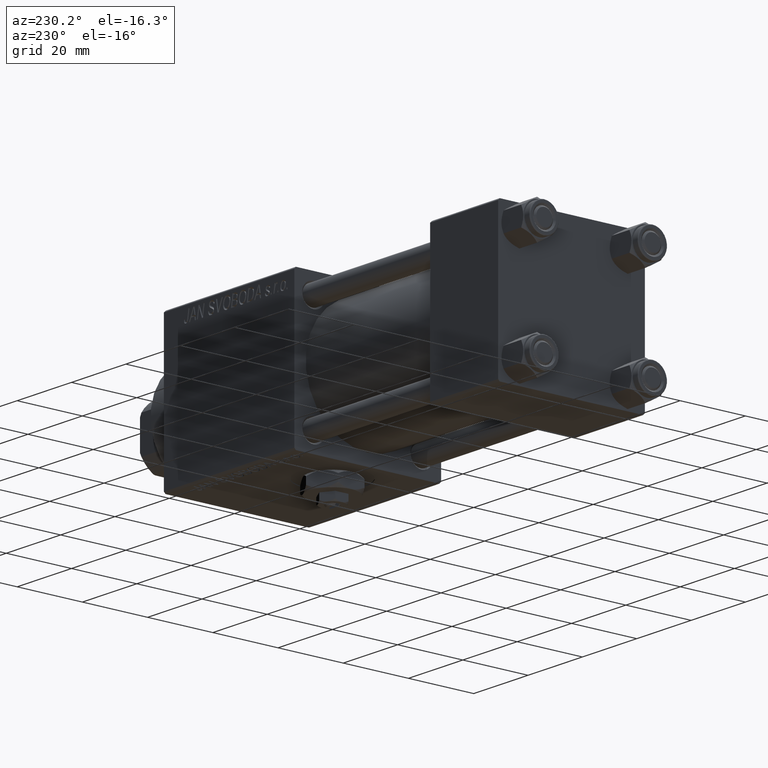
[diagram: clean part render]
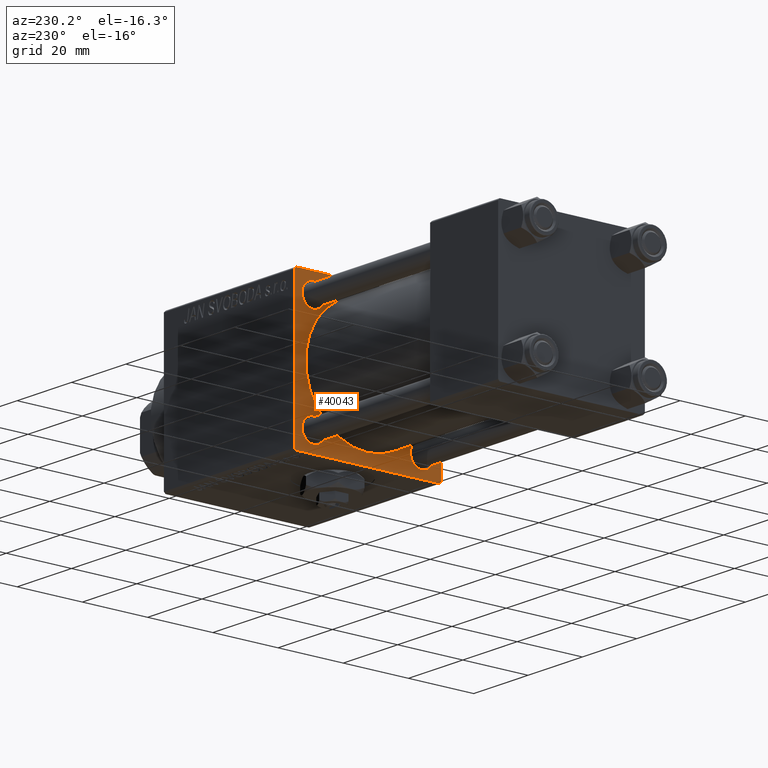
[diagram: same view with one face highlighted and labeled with its STEP entity id]
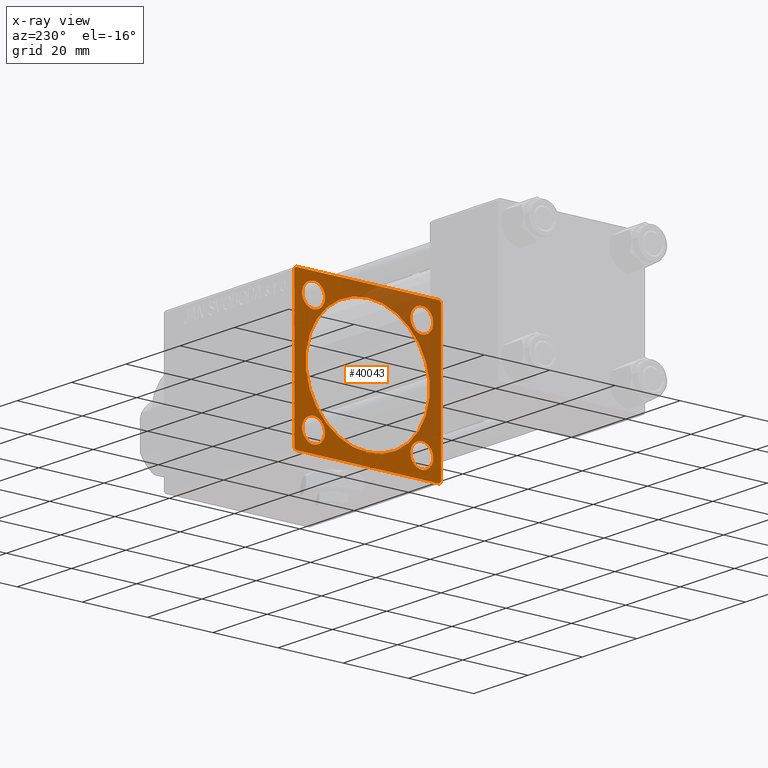
[diagram: x-ray of the same camera — body ghosted, the highlighted face saturated]
A machine part, auxiliary view. The second image highlights one B-rep face of the part: STEP entity #40043.
The next image is the same camera in x-ray: the body ghosted, the highlighted face saturated — about 37% of this face is hidden behind the body in this view.
In plain terms, the highlighted planar face has unit normal (-1, 0, 0).
Its self-contained STEP definition (entity closure, byte-faithful):
#465 = CIRCLE ( 'NONE', #18048, 3.500000000000013323 ) ;
#1208 = VECTOR ( 'NONE', #1463, 999.9999999999998863 ) ;
#1354 = VERTEX_POINT ( 'NONE', #8904 ) ;
#1416 = EDGE_LOOP ( 'NONE', ( #18788, #15748 ) ) ;
#1463 = DIRECTION ( 'NONE',  ( 0.000000000000000000, -0.7071067811865425767, 0.7071067811865525687 ) ) ;
#1818 = EDGE_LOOP ( 'NONE', ( #40260, #8566 ) ) ;
#2043 = AXIS2_PLACEMENT_3D ( 'NONE', #47583, #28475, #15345 ) ;
#2075 = VERTEX_POINT ( 'NONE', #25822 ) ;
#2494 = EDGE_CURVE ( 'NONE', #43541, #48526, #46695, .T. ) ;
#2769 = DIRECTION ( 'NONE',  ( 0.000000000000000000, 0.000000000000000000, -1.000000000000000000 ) ) ;
#3001 = EDGE_CURVE ( 'NONE', #21771, #5121, #40985, .T. ) ;
#3101 = LINE ( 'NONE', #10973, #7654 ) ;
#3472 = VERTEX_POINT ( 'NONE', #20375 ) ;
#3881 = CARTESIAN_POINT ( 'NONE',  ( 75.00000000000001421, 16.59999999999999787, 16.60000000000000497 ) ) ;
#4811 = CIRCLE ( 'NONE', #34107, 19.00000000000000000 ) ;
#4905 = EDGE_CURVE ( 'NONE', #2075, #41671, #24202, .T. ) ;
#5121 = VERTEX_POINT ( 'NONE', #5480 ) ;
#5400 = LINE ( 'NONE', #9593, #1208 ) ;
#5480 = CARTESIAN_POINT ( 'NONE',  ( 75.00000000000001421, -21.99999999999998224, -22.50000000000000000 ) ) ;
#5544 = ORIENTED_EDGE ( 'NONE', *, *, #8315, .T. ) ;
#5810 = CARTESIAN_POINT ( 'NONE',  ( 75.00000000000001421, 16.59999999999999787, 16.60000000000000497 ) ) ;
#6050 = VERTEX_POINT ( 'NONE', #35677 ) ;
#6139 = VECTOR ( 'NONE', #14066, 1000.000000000000000 ) ;
#6452 = CARTESIAN_POINT ( 'NONE',  ( 75.00000000000001421, 22.50000000000000355, 22.50000000000000355 ) ) ;
#6991 = EDGE_CURVE ( 'NONE', #38206, #37754, #3101, .T. ) ;
#7266 = DIRECTION ( 'NONE',  ( 0.000000000000000000, 0.000000000000000000, -1.000000000000000000 ) ) ;
#7268 = VERTEX_POINT ( 'NONE', #10396 ) ;
#7654 = VECTOR ( 'NONE', #23836, 1000.000000000000000 ) ;
#7696 = FACE_BOUND ( 'NONE', #50172, .T. ) ;
#7879 = EDGE_CURVE ( 'NONE', #41671, #2075, #51214, .T. ) ;
#7964 = CARTESIAN_POINT ( 'NONE',  ( 75.00000000000001421, 0.000000000000000000, 0.000000000000000000 ) ) ;
#8041 = EDGE_LOOP ( 'NONE', ( #19420, #41064, #17453, #31757, #20898, #37013, #48040, #5544 ) ) ;
#8315 = EDGE_CURVE ( 'NONE', #42344, #21771, #12242, .T. ) ;
#8566 = ORIENTED_EDGE ( 'NONE', *, *, #22866, .T. ) ;
#8904 = CARTESIAN_POINT ( 'NONE',  ( 75.00000000000001421, -22.49999999999999645, -21.99999999999997868 ) ) ;
#9536 = CARTESIAN_POINT ( 'NONE',  ( 75.00000000000001421, 16.59999999999999787, -16.60000000000000497 ) ) ;
#9593 = CARTESIAN_POINT ( 'NONE',  ( 75.00000000000001421, -22.25000000000015277, -22.24999999999984013 ) ) ;
#10396 = CARTESIAN_POINT ( 'NONE',  ( 75.00000000000001421, 16.59999999999999787, 20.10000000000001208 ) ) ;
#10691 = CARTESIAN_POINT ( 'NONE',  ( 75.00000000000001421, 22.50000000000000355, 22.50000000000000355 ) ) ;
#10973 = CARTESIAN_POINT ( 'NONE',  ( 75.00000000000001421, -22.24999999999969447, 22.25000000000030909 ) ) ;
#11273 = AXIS2_PLACEMENT_3D ( 'NONE', #5810, #45663, #50369 ) ;
#11653 = VECTOR ( 'NONE', #23161, 1000.000000000000000 ) ;
#12016 = DIRECTION ( 'NONE',  ( 0.000000000000000000, 0.000000000000000000, 1.000000000000000000 ) ) ;
#12025 = EDGE_CURVE ( 'NONE', #41240, #37754, #43777, .T. ) ;
#12129 = AXIS2_PLACEMENT_3D ( 'NONE', #3881, #27500, #12016 ) ;
#12242 = LINE ( 'NONE', #37110, #29485 ) ;
#12258 = AXIS2_PLACEMENT_3D ( 'NONE', #21586, #13697, #17893 ) ;
#12764 = ORIENTED_EDGE ( 'NONE', *, *, #34625, .T. ) ;
#13517 = EDGE_CURVE ( 'NONE', #38206, #1354, #19133, .T. ) ;
#13697 = DIRECTION ( 'NONE',  ( 1.000000000000000000, 0.000000000000000000, 0.000000000000000000 ) ) ;
#13781 = CIRCLE ( 'NONE', #11273, 3.500000000000010214 ) ;
#14066 = DIRECTION ( 'NONE',  ( 0.000000000000000000, -1.000000000000000000, -2.312964634635742957E-16 ) ) ;
#14697 = CARTESIAN_POINT ( 'NONE',  ( 75.00000000000001421, -16.59999999999999076, -13.09999999999999787 ) ) ;
#15045 = FACE_BOUND ( 'NONE', #1416, .T. ) ;
#15164 = DIRECTION ( 'NONE',  ( 0.000000000000000000, 0.000000000000000000, 1.000000000000000000 ) ) ;
#15193 = DIRECTION ( 'NONE',  ( 0.000000000000000000, 0.000000000000000000, -1.000000000000000000 ) ) ;
#15345 = DIRECTION ( 'NONE',  ( 0.000000000000000000, 0.000000000000000000, 1.000000000000000000 ) ) ;
#15470 = CARTESIAN_POINT ( 'NONE',  ( 75.00000000000001421, 16.59999999999999787, -20.10000000000001208 ) ) ;
#15566 = FACE_BOUND ( 'NONE', #34694, .T. ) ;
#15748 = ORIENTED_EDGE ( 'NONE', *, *, #4905, .T. ) ;
#16235 = CARTESIAN_POINT ( 'NONE',  ( 75.00000000000001421, -16.59999999999999076, 16.60000000000000853 ) ) ;
#17453 = ORIENTED_EDGE ( 'NONE', *, *, #13517, .F. ) ;
#17670 = DIRECTION ( 'NONE',  ( 1.000000000000000000, -0.000000000000000000, 0.000000000000000000 ) ) ;
#17893 = DIRECTION ( 'NONE',  ( 0.000000000000000000, 0.000000000000000000, -1.000000000000000000 ) ) ;
#18048 = AXIS2_PLACEMENT_3D ( 'NONE', #16235, #39301, #27522 ) ;
#18362 = EDGE_CURVE ( 'NONE', #6050, #39430, #29701, .T. ) ;
#18561 = LINE ( 'NONE', #10691, #28384 ) ;
#18788 = ORIENTED_EDGE ( 'NONE', *, *, #7879, .T. ) ;
#18915 = VERTEX_POINT ( 'NONE', #45145 ) ;
#18979 = DIRECTION ( 'NONE',  ( -0.000000000000000000, 0.000000000000000000, 1.000000000000000000 ) ) ;
#19133 = LINE ( 'NONE', #51109, #36249 ) ;
#19234 = LINE ( 'NONE', #51462, #11653 ) ;
#19420 = ORIENTED_EDGE ( 'NONE', *, *, #3001, .T. ) ;
#20041 = CARTESIAN_POINT ( 'NONE',  ( 75.00000000000001421, -2.602085213965210642E-15, 0.000000000000000000 ) ) ;
#20375 = CARTESIAN_POINT ( 'NONE',  ( 75.00000000000001421, -2.602085213965210642E-15, 19.00000000000000000 ) ) ;
#20561 = DIRECTION ( 'NONE',  ( 0.000000000000000000, -1.000000000000000000, -7.709882115452476934E-17 ) ) ;
#20805 = DIRECTION ( 'NONE',  ( 0.000000000000000000, 0.000000000000000000, 1.000000000000000000 ) ) ;
#20898 = ORIENTED_EDGE ( 'NONE', *, *, #12025, .F. ) ;
#21586 = CARTESIAN_POINT ( 'NONE',  ( 75.00000000000001421, -2.602085213965210642E-15, 0.000000000000000000 ) ) ;
#21771 = VERTEX_POINT ( 'NONE', #22919 ) ;
#22866 = EDGE_CURVE ( 'NONE', #18915, #3472, #34837, .T. ) ;
#22919 = CARTESIAN_POINT ( 'NONE',  ( 75.00000000000001421, 22.00000000000000355, -22.49999999999999645 ) ) ;
#23161 = DIRECTION ( 'NONE',  ( 0.000000000000000000, 0.7071067811865573427, -0.7071067811865378028 ) ) ;
#23711 = FACE_OUTER_BOUND ( 'NONE', #8041, .T. ) ;
#23836 = DIRECTION ( 'NONE',  ( -0.000000000000000000, 0.7071067811865573427, 0.7071067811865378028 ) ) ;
#24202 = CIRCLE ( 'NONE', #43436, 3.500000000000010214 ) ;
#24370 = DIRECTION ( 'NONE',  ( 0.000000000000000000, 0.000000000000000000, 1.000000000000000000 ) ) ;
#25822 = CARTESIAN_POINT ( 'NONE',  ( 75.00000000000001421, -16.59999999999999076, -20.10000000000001563 ) ) ;
#27251 = DIRECTION ( 'NONE',  ( 1.000000000000000000, -0.000000000000000000, 0.000000000000000000 ) ) ;
#27500 = DIRECTION ( 'NONE',  ( 1.000000000000000000, -0.000000000000000000, 0.000000000000000000 ) ) ;
#27522 = DIRECTION ( 'NONE',  ( 0.000000000000000000, 0.000000000000000000, 1.000000000000000000 ) ) ;
#28384 = VECTOR ( 'NONE', #7266, 1000.000000000000000 ) ;
#28475 = DIRECTION ( 'NONE',  ( 1.000000000000000000, -0.000000000000000000, 0.000000000000000000 ) ) ;
#28648 = AXIS2_PLACEMENT_3D ( 'NONE', #31173, #27251, #24370 ) ;
#29042 = AXIS2_PLACEMENT_3D ( 'NONE', #7964, #47548, #18979 ) ;
#29485 = VECTOR ( 'NONE', #36601, 1000.000000000000000 ) ;
#29701 = CIRCLE ( 'NONE', #2043, 3.500000000000013323 ) ;
#31079 = CARTESIAN_POINT ( 'NONE',  ( 75.00000000000001421, 21.99999999999996092, 22.50000000000000355 ) ) ;
#31173 = CARTESIAN_POINT ( 'NONE',  ( 75.00000000000001421, -16.59999999999999076, -16.60000000000000853 ) ) ;
#31757 = ORIENTED_EDGE ( 'NONE', *, *, #6991, .T. ) ;
#32113 = EDGE_CURVE ( 'NONE', #41240, #45569, #19234, .T. ) ;
#32492 = ORIENTED_EDGE ( 'NONE', *, *, #35133, .T. ) ;
#34107 = AXIS2_PLACEMENT_3D ( 'NONE', #20041, #36006, #2769 ) ;
#34383 = EDGE_CURVE ( 'NONE', #5121, #1354, #5400, .T. ) ;
#34625 = EDGE_CURVE ( 'NONE', #48526, #43541, #49755, .T. ) ;
#34694 = EDGE_LOOP ( 'NONE', ( #32492, #46380 ) ) ;
#34837 = CIRCLE ( 'NONE', #12258, 19.00000000000000000 ) ;
#35133 = EDGE_CURVE ( 'NONE', #7268, #39927, #13781, .T. ) ;
#35207 = ORIENTED_EDGE ( 'NONE', *, *, #18362, .T. ) ;
#35222 = PLANE ( 'NONE',  #29042 ) ;
#35498 = EDGE_CURVE ( 'NONE', #39927, #7268, #49788, .T. ) ;
#35677 = CARTESIAN_POINT ( 'NONE',  ( 75.00000000000001421, -16.59999999999999076, 13.09999999999999432 ) ) ;
#35851 = AXIS2_PLACEMENT_3D ( 'NONE', #51333, #38511, #15164 ) ;
#36006 = DIRECTION ( 'NONE',  ( 1.000000000000000000, 0.000000000000000000, 0.000000000000000000 ) ) ;
#36018 = FACE_BOUND ( 'NONE', #1818, .T. ) ;
#36249 = VECTOR ( 'NONE', #15193, 1000.000000000000000 ) ;
#36401 = EDGE_LOOP ( 'NONE', ( #50683, #35207 ) ) ;
#36601 = DIRECTION ( 'NONE',  ( -0.000000000000000000, -0.7071067811865573427, -0.7071067811865378028 ) ) ;
#37013 = ORIENTED_EDGE ( 'NONE', *, *, #32113, .T. ) ;
#37110 = CARTESIAN_POINT ( 'NONE',  ( 75.00000000000001421, 22.24999999999969802, -22.25000000000031619 ) ) ;
#37300 = EDGE_CURVE ( 'NONE', #39430, #6050, #465, .T. ) ;
#37592 = DIRECTION ( 'NONE',  ( 0.000000000000000000, 0.000000000000000000, 1.000000000000000000 ) ) ;
#37754 = VERTEX_POINT ( 'NONE', #48170 ) ;
#38206 = VERTEX_POINT ( 'NONE', #44641 ) ;
#38511 = DIRECTION ( 'NONE',  ( 1.000000000000000000, -0.000000000000000000, 0.000000000000000000 ) ) ;
#39178 = VECTOR ( 'NONE', #20561, 1000.000000000000000 ) ;
#39301 = DIRECTION ( 'NONE',  ( 1.000000000000000000, -0.000000000000000000, 0.000000000000000000 ) ) ;
#39430 = VERTEX_POINT ( 'NONE', #41221 ) ;
#39927 = VERTEX_POINT ( 'NONE', #49218 ) ;
#40043 = ADVANCED_FACE ( 'NONE', ( #43620, #15566, #7696, #15045, #36018, #23711 ), #35222, .T. ) ;
#40260 = ORIENTED_EDGE ( 'NONE', *, *, #42434, .T. ) ;
#40327 = CARTESIAN_POINT ( 'NONE',  ( 75.00000000000001421, 22.50000000000000355, 21.99999999999997513 ) ) ;
#40463 = CARTESIAN_POINT ( 'NONE',  ( 75.00000000000001421, -16.59999999999999076, -16.60000000000000853 ) ) ;
#40475 = CARTESIAN_POINT ( 'NONE',  ( 75.00000000000001421, 22.50000000000000355, -22.49999999999999645 ) ) ;
#40985 = LINE ( 'NONE', #40475, #39178 ) ;
#41064 = ORIENTED_EDGE ( 'NONE', *, *, #34383, .T. ) ;
#41122 = CARTESIAN_POINT ( 'NONE',  ( 75.00000000000001421, 16.59999999999999787, -13.09999999999999432 ) ) ;
#41221 = CARTESIAN_POINT ( 'NONE',  ( 75.00000000000001421, -16.59999999999999076, 20.10000000000001918 ) ) ;
#41240 = VERTEX_POINT ( 'NONE', #31079 ) ;
#41671 = VERTEX_POINT ( 'NONE', #14697 ) ;
#42344 = VERTEX_POINT ( 'NONE', #49206 ) ;
#42434 = EDGE_CURVE ( 'NONE', #3472, #18915, #4811, .T. ) ;
#43436 = AXIS2_PLACEMENT_3D ( 'NONE', #40463, #48064, #20805 ) ;
#43541 = VERTEX_POINT ( 'NONE', #15470 ) ;
#43620 = FACE_BOUND ( 'NONE', #36401, .T. ) ;
#43777 = LINE ( 'NONE', #6452, #6139 ) ;
#43926 = EDGE_CURVE ( 'NONE', #45569, #42344, #18561, .T. ) ;
#44641 = CARTESIAN_POINT ( 'NONE',  ( 75.00000000000001421, -22.49999999999999645, 22.00000000000000711 ) ) ;
#44750 = AXIS2_PLACEMENT_3D ( 'NONE', #9536, #17670, #37592 ) ;
#45145 = CARTESIAN_POINT ( 'NONE',  ( 75.00000000000001421, -2.752562955852396712E-16, -19.00000000000000000 ) ) ;
#45569 = VERTEX_POINT ( 'NONE', #40327 ) ;
#45663 = DIRECTION ( 'NONE',  ( 1.000000000000000000, -0.000000000000000000, 0.000000000000000000 ) ) ;
#46380 = ORIENTED_EDGE ( 'NONE', *, *, #35498, .T. ) ;
#46695 = CIRCLE ( 'NONE', #35851, 3.500000000000010214 ) ;
#47548 = DIRECTION ( 'NONE',  ( -1.000000000000000000, 0.000000000000000000, -0.000000000000000000 ) ) ;
#47583 = CARTESIAN_POINT ( 'NONE',  ( 75.00000000000001421, -16.59999999999999076, 16.60000000000000853 ) ) ;
#48040 = ORIENTED_EDGE ( 'NONE', *, *, #43926, .T. ) ;
#48064 = DIRECTION ( 'NONE',  ( 1.000000000000000000, -0.000000000000000000, 0.000000000000000000 ) ) ;
#48170 = CARTESIAN_POINT ( 'NONE',  ( 75.00000000000001421, -21.99999999999998224, 22.49999999999999289 ) ) ;
#48526 = VERTEX_POINT ( 'NONE', #41122 ) ;
#49206 = CARTESIAN_POINT ( 'NONE',  ( 75.00000000000001421, 22.50000000000000355, -21.99999999999999645 ) ) ;
#49218 = CARTESIAN_POINT ( 'NONE',  ( 75.00000000000001421, 16.59999999999999787, 13.09999999999999432 ) ) ;
#49755 = CIRCLE ( 'NONE', #44750, 3.500000000000010214 ) ;
#49788 = CIRCLE ( 'NONE', #12129, 3.500000000000010214 ) ;
#49958 = ORIENTED_EDGE ( 'NONE', *, *, #2494, .T. ) ;
#50172 = EDGE_LOOP ( 'NONE', ( #12764, #49958 ) ) ;
#50369 = DIRECTION ( 'NONE',  ( 0.000000000000000000, 0.000000000000000000, 1.000000000000000000 ) ) ;
#50683 = ORIENTED_EDGE ( 'NONE', *, *, #37300, .T. ) ;
#51109 = CARTESIAN_POINT ( 'NONE',  ( 75.00000000000001421, -22.49999999999999645, 22.49999999999999289 ) ) ;
#51214 = CIRCLE ( 'NONE', #28648, 3.500000000000010214 ) ;
#51333 = CARTESIAN_POINT ( 'NONE',  ( 75.00000000000001421, 16.59999999999999787, -16.60000000000000497 ) ) ;
#51462 = CARTESIAN_POINT ( 'NONE',  ( 75.00000000000001421, 22.24999999999968026, 22.25000000000029488 ) ) ;